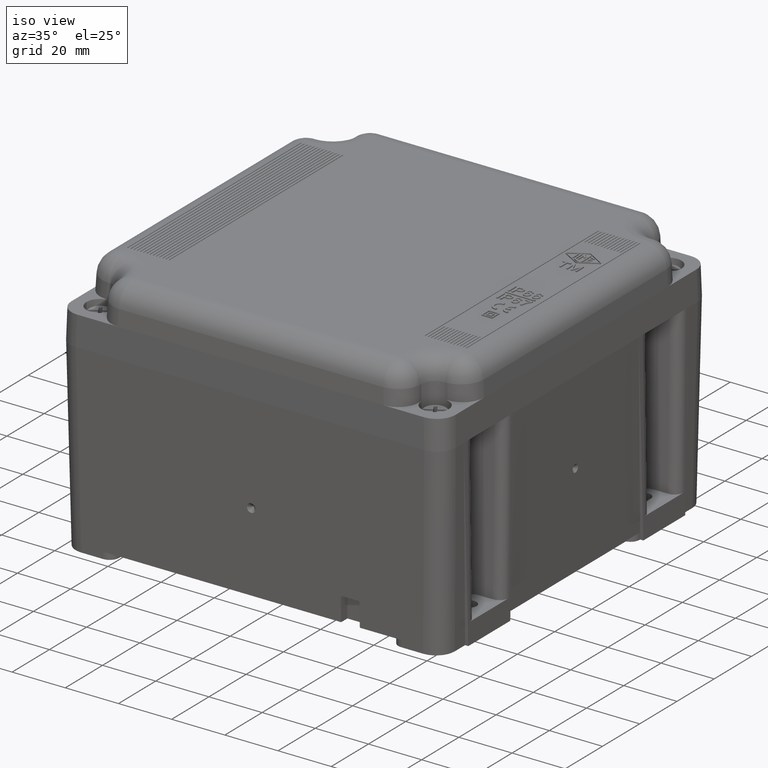
[diagram: clean part render]
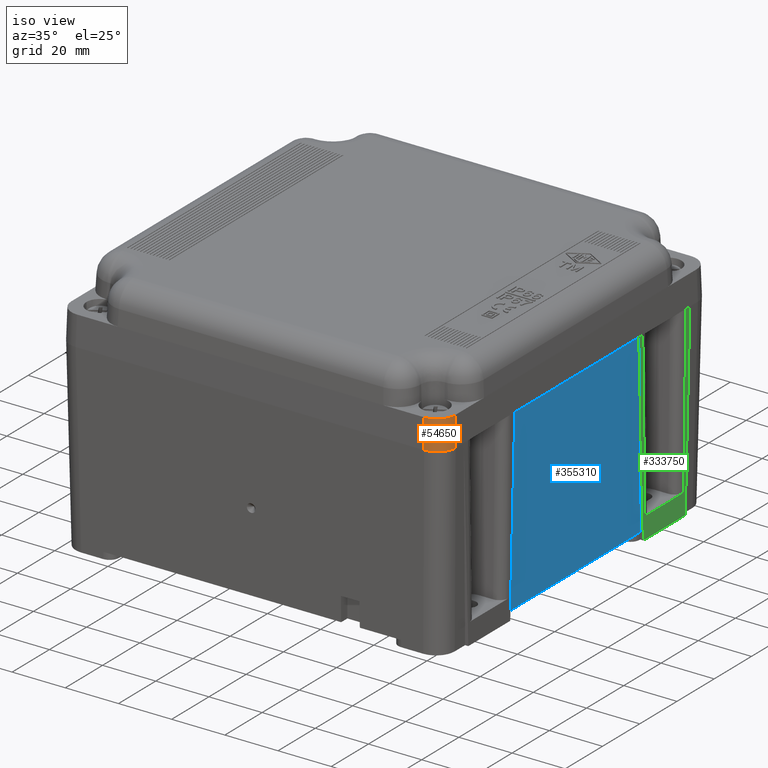
[diagram: same view with three faces highlighted in distinct colors, each labeled with its STEP entity id]
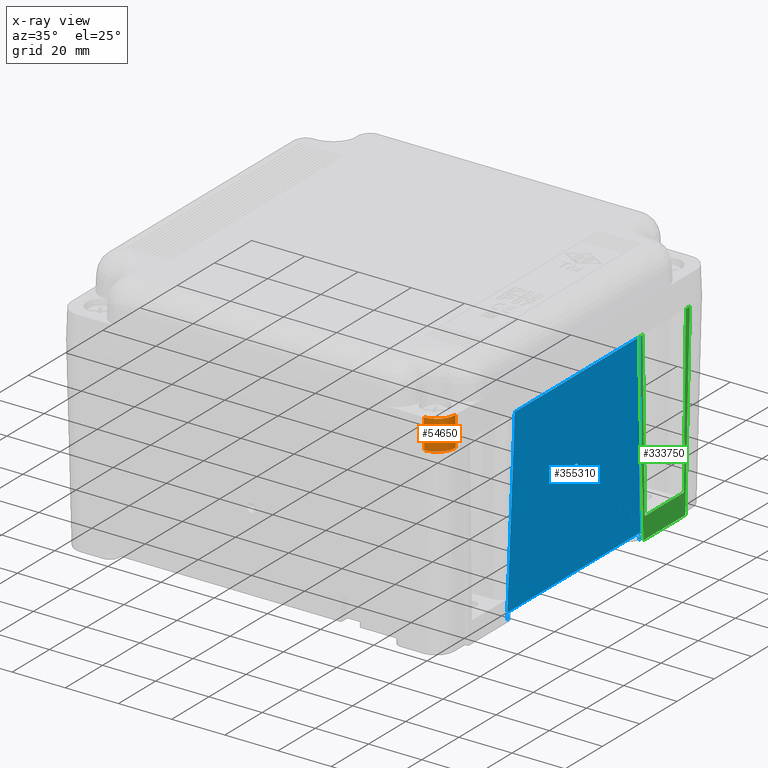
[diagram: x-ray of the same camera — body ghosted, the three highlighted faces saturated]
A machine part, iso view with three faces highlighted in distinct colors.
The next image is the same camera in x-ray (body ghosted, the three faces saturated) — at least one of them is partly hidden behind the body in this view.
Their STEP definitions:

[orange] entity #54650 — the highlighted cylindrical surface (edge-blend (fillet) strip) has radius 7 mm, axis along (-0.0262, 0.0262, 0.9993).
#54240=CARTESIAN_POINT('',(468.973882021168,58.526117978823,
3.42481598636368E-12));
#54250=DIRECTION('',(-0.0261679842651497,0.0261679842649793,
0.999315001988365));
#54260=DIRECTION('',(0.999657324975553,0.,0.0261769483080436));
#54270=AXIS2_PLACEMENT_3D('',#54240,#54250,#54260);
#54280=CYLINDRICAL_SURFACE('',#54270,7.);
#54290=CARTESIAN_POINT('',(469.209555315292,58.2904446847009,
-8.9999999999742));
#54300=DIRECTION('',(1.70549745039276E-13,-6.12323399573676E-17,-1.));
#54310=DIRECTION('',(-0.707106781186585,0.70710678118651,
-1.20640179049727E-13));
#54320=AXIS2_PLACEMENT_3D('',#54290,#54300,#54310);
#54330=ELLIPSE('',#54320,7.0047982728888,7.);
#54340=CARTESIAN_POINT('',(476.211954862728,58.2856464120937,
-8.99999999997301));
#54350=VERTEX_POINT('',#54340);
#54360=CARTESIAN_POINT('',(469.214353587899,51.2880451372648,
-8.9999999999742));
#54370=VERTEX_POINT('',#54360);
#54380=EDGE_CURVE('',#54350,#54370,#54330,.T.);
#54390=ORIENTED_EDGE('',*,*,#54380,.T.);
#54400=CARTESIAN_POINT('',(475.971483295997,58.526117978823,
0.18323863815973));
#54410=DIRECTION('',(-0.0261679842651497,0.0261679842649793,
0.999315001988365));
#54420=VECTOR('',#54410,1.);
#54430=LINE('',#54400,#54420);
#54440=CARTESIAN_POINT('',(476.499999999991,57.9976012748327,
-19.9999999999724));
#54450=VERTEX_POINT('',#54440);
#54460=EDGE_CURVE('',#54450,#54350,#54430,.T.);
#54470=ORIENTED_EDGE('',*,*,#54460,.T.);
#54480=CARTESIAN_POINT('',(469.497600452555,58.0023995474398,
-19.9999999999741));
#54490=DIRECTION('',(1.70530256582424E-13,0.,-1.));
#54500=DIRECTION('',(-0.707106781186584,0.707106781186511,
-1.2058310082692E-13));
#54510=AXIS2_PLACEMENT_3D('',#54480,#54490,#54500);
#54520=ELLIPSE('',#54510,7.0047982728888,7.);
#54530=CARTESIAN_POINT('',(469.502398725162,51.0000000000038,
-19.9999999999736));
#54540=VERTEX_POINT('',#54530);
#54550=EDGE_CURVE('',#54450,#54540,#54520,.T.);
#54560=ORIENTED_EDGE('',*,*,#54550,.F.);
#54570=CARTESIAN_POINT('',(468.973882021168,51.5285167039941,
0.183238638158537));
#54580=DIRECTION('',(-0.0261679842651497,0.0261679842649793,
0.999315001988365));
#54590=VECTOR('',#54580,1.);
#54600=LINE('',#54570,#54590);
#54610=EDGE_CURVE('',#54540,#54370,#54600,.T.);
#54620=ORIENTED_EDGE('',*,*,#54610,.F.);
#54630=EDGE_LOOP('',(#54620,#54560,#54470,#54390));
#54640=FACE_OUTER_BOUND('',#54630,.T.);
#54650=ADVANCED_FACE('',(#54640),#54280,.T.);

[blue] entity #355310 — the highlighted planar face has unit normal (0.9998, -0, -0.0175).
#333190=CARTESIAN_POINT('',(32.6999999999905,172.999999999993,
-49.6950877085779));
#333200=VERTEX_POINT('',#333190);
#342400=CARTESIAN_POINT('',(32.6999999999905,172.999999999985,
-116.304912291481));
#342410=VERTEX_POINT('',#342400);
#347670=CARTESIAN_POINT('',(0.700000000010186,172.44143792229,
-81.5215854885998));
#347680=VERTEX_POINT('',#347670);
#347750=CARTESIAN_POINT('',(0.700000000010271,172.44143792229,
-84.478414511461));
#347760=VERTEX_POINT('',#347750);
#347790=CARTESIAN_POINT('',(0.725813686193579,172.441888501858,
-83.0000000000304));
#347800=DIRECTION('',(-0.0174524064371354,0.999847695156394,
-5.9235661934192E-14));
#347810=DIRECTION('',(0.999847695156394,0.0174524064371354,
3.41007803703483E-12));
#347820=AXIS2_PLACEMENT_3D('',#347790,#347800,#347810);
#347830=ELLIPSE('',#347820,1.47909036362547,1.47863978405188);
#347840=CARTESIAN_POINT('',(2.20467877719254,172.467702188041,
-83.0000000000253));
#347850=VERTEX_POINT('',#347840);
#347860=EDGE_CURVE('',#347850,#347760,#347830,.T.);
#347880=EDGE_CURVE('',#347680,#347850,#347830,.T.);
#349330=CARTESIAN_POINT('',(-37.2999999999908,171.778145455025,
-47.5000000000609));
#349340=VERTEX_POINT('',#349330);
#349370=CARTESIAN_POINT('',(-37.2999999999939,171.778145455032,58.718203
));
#349380=DIRECTION('',(2.85724411918868E-14,-5.8745951370546E-14,-1.));
#349390=VECTOR('',#349380,1.);
#349400=LINE('',#349370,#349390);
#349410=CARTESIAN_POINT('',(-37.2999999999908,171.778145455025,
-47.2506338441284));
#349420=VERTEX_POINT('',#349410);
#349430=EDGE_CURVE('',#349420,#349340,#349400,.T.);
#354140=CARTESIAN_POINT('',(32.6999999999905,172.999999999996,58.718203)
);
#354150=DIRECTION('',(1.50731761482806E-16,-5.92420541540204E-14,-1.));
#354160=VECTOR('',#354150,1.);
#354170=LINE('',#354140,#354160);
#354180=EDGE_CURVE('',#333200,#342410,#354170,.T.);
#354720=CARTESIAN_POINT('',(-37.2893386609297,171.778331549373,
-344.500000000058));
#354730=DIRECTION('',(-0.0174524064371354,0.999847695156394,
-5.9235661934192E-14));
#354740=DIRECTION('',(-2.85767699558967E-14,5.87458758116892E-14,1.));
#354750=AXIS2_PLACEMENT_3D('',#354720,#354730,#354740);
#354760=PLANE('',#354750);
#354770=ORIENTED_EDGE('',*,*,#347860,.F.);
#354780=EDGE_CURVE('',#347760,#347680,#347830,.T.);
#354790=ORIENTED_EDGE('',*,*,#354780,.F.);
#354800=ORIENTED_EDGE('',*,*,#347880,.F.);
#354810=EDGE_LOOP('',(#354800,#354790,#354770));
#354820=FACE_BOUND('',#354810,.T.);
#354830=CARTESIAN_POINT('',(-9.86108342253003,172.25709352543,
-118.500000000016));
#354840=DIRECTION('',(0.999847695156391,0.0174524064372797,
2.75523494764867E-14));
#354850=VECTOR('',#354840,1.);
#354860=LINE('',#354830,#354850);
#354870=CARTESIAN_POINT('',(-37.299999999999,171.778145455011,
-118.500000000016));
#354880=VERTEX_POINT('',#354870);
#354890=CARTESIAN_POINT('',(-34.8000000000028,171.821783117331,
-118.500000000016));
#354900=VERTEX_POINT('',#354890);
#354910=EDGE_CURVE('',#354880,#354900,#354860,.T.);
#354920=ORIENTED_EDGE('',*,*,#354910,.T.);
#354930=CARTESIAN_POINT('',(-37.3000000000041,171.778145455031,58.718203
));
#354940=DIRECTION('',(2.85724411918869E-14,-5.8745951370546E-14,-1.));
#354950=VECTOR('',#354940,1.);
#354960=LINE('',#354930,#354950);
#354970=CARTESIAN_POINT('',(-37.2999999999993,171.778145455021,
-118.749366155935));
#354980=VERTEX_POINT('',#354970);
#354990=EDGE_CURVE('',#354880,#354980,#354960,.T.);
#355000=ORIENTED_EDGE('',*,*,#354990,.F.);
#355010=CARTESIAN_POINT('',(-9.80000000000002,172.258159740543,
-117.789044994899));
#355020=DIRECTION('',(0.999238800303638,0.0174417781379482,
0.0348941878130671));
#355030=VECTOR('',#355020,1.);
#355040=LINE('',#355010,#355030);
#355050=EDGE_CURVE('',#354980,#342410,#355040,.T.);
#355060=ORIENTED_EDGE('',*,*,#355050,.F.);
#355070=ORIENTED_EDGE('',*,*,#354180,.T.);
#355080=CARTESIAN_POINT('',(-9.80000000000002,172.258159740547,
-48.2109550051621));
#355090=DIRECTION('',(-0.99923880030364,-0.0174417781379441,
0.03489418781301));
#355100=VECTOR('',#355090,1.);
#355110=LINE('',#355080,#355100);
#355120=EDGE_CURVE('',#333200,#349420,#355110,.T.);
#355130=ORIENTED_EDGE('',*,*,#355120,.F.);
#355140=ORIENTED_EDGE('',*,*,#349430,.F.);
#355150=CARTESIAN_POINT('',(-9.86108342252121,172.257093525441,
-47.5000000000602));
#355160=DIRECTION('',(-0.999847695156394,-0.0174524064371354,
-2.75532734332307E-14));
#355170=VECTOR('',#355160,1.);
#355180=LINE('',#355150,#355170);
#355190=CARTESIAN_POINT('',(-34.8000000000048,171.821783117345,
-47.5000000000609));
#355200=VERTEX_POINT('',#355190);
#355210=EDGE_CURVE('',#355200,#349340,#355180,.T.);
#355220=ORIENTED_EDGE('',*,*,#355210,.T.);
#355230=CARTESIAN_POINT('',(-34.8000000000079,171.821783117352,58.718203
));
#355240=DIRECTION('',(-2.85724411918869E-14,5.8745951370546E-14,1.));
#355250=VECTOR('',#355240,1.);
#355260=LINE('',#355230,#355250);
#355270=EDGE_CURVE('',#354900,#355200,#355260,.T.);
#355280=ORIENTED_EDGE('',*,*,#355270,.T.);
#355290=EDGE_LOOP('',(#355280,#355220,#355140,#355130,#355070,#355060,
#355000,#354920));
#355300=FACE_OUTER_BOUND('',#355290,.T.);
#355310=ADVANCED_FACE('',(#354820,#355300),#354760,.T.);

[green] entity #333750 — the highlighted planar face has unit normal (-1, -0, -0).
#333080=CARTESIAN_POINT('',(32.6999999999957,172.999999999993,
-27.9177859745089));
#333090=DIRECTION('',(-7.70954603581925E-14,-1.,1.40642972625859E-15));
#333100=DIRECTION('',(5.6994150622305E-14,-1.40642972626298E-15,-1.));
#333110=AXIS2_PLACEMENT_3D('',#333080,#333090,#333100);
#333120=PLANE('',#333110);
#333130=CARTESIAN_POINT('',(-9.80000000000002,172.999999999997,
-48.2109550051621));
#333140=DIRECTION('',(0.999390827019082,-7.7095404284344E-14,
-0.0348994967028967));
#333150=VECTOR('',#333140,1.);
#333160=LINE('',#333130,#333150);
#333170=CARTESIAN_POINT('',(-37.2999999999907,172.999999999999,
-47.2506338441284));
#333180=VERTEX_POINT('',#333170);
#333190=CARTESIAN_POINT('',(32.6999999999905,172.999999999993,
-49.6950877085779));
#333200=VERTEX_POINT('',#333190);
#333210=EDGE_CURVE('',#333180,#333200,#333160,.T.);
#333220=ORIENTED_EDGE('',*,*,#333210,.F.);
#333230=CARTESIAN_POINT('',(32.6999999999905,172.999999999993,58.718203)
);
#333240=DIRECTION('',(-1.50731761487137E-16,1.4064297262586E-15,1.));
#333250=VECTOR('',#333240,1.);
#333260=LINE('',#333230,#333250);
#333270=CARTESIAN_POINT('',(32.6999999999968,172.999999999993,
-47.5827471737614));
#333280=VERTEX_POINT('',#333270);
#333290=EDGE_CURVE('',#333200,#333280,#333260,.T.);
#333300=ORIENTED_EDGE('',*,*,#333290,.F.);
#333310=CARTESIAN_POINT('',(-9.79999999999089,172.999999999997,
-46.8409069143148));
#333320=DIRECTION('',(0.999847695156392,-7.71082639293678E-14,
-0.0174524064372258));
#333330=VECTOR('',#333320,1.);
#333340=LINE('',#333310,#333330);
#333350=CARTESIAN_POINT('',(-29.2999999999976,172.999999999998,
-46.5005331482156));
#333360=VERTEX_POINT('',#333350);
#333370=EDGE_CURVE('',#333360,#333280,#333340,.T.);
#333380=ORIENTED_EDGE('',*,*,#333370,.T.);
#333390=CARTESIAN_POINT('',(-29.3000000000036,172.999999999998,58.718203
));
#333400=DIRECTION('',(-5.6994150622305E-14,1.40642972626298E-15,1.));
#333410=VECTOR('',#333400,1.);
#333420=LINE('',#333390,#333410);
#333430=CARTESIAN_POINT('',(-29.2999999999988,172.999999999998,
-25.4994668519081));
#333440=VERTEX_POINT('',#333430);
#333450=EDGE_CURVE('',#333360,#333440,#333420,.T.);
#333460=ORIENTED_EDGE('',*,*,#333450,.F.);
#333470=CARTESIAN_POINT('',(-9.79999999999213,172.999999999997,
-25.1590930858067));
#333480=DIRECTION('',(-0.99984769515639,7.70591727629514E-14,
-0.0174524064373407));
#333490=VECTOR('',#333480,1.);
#333500=LINE('',#333470,#333490);
#333510=CARTESIAN_POINT('',(32.6999999999955,172.999999999993,
-24.4172528263552));
#333520=VERTEX_POINT('',#333510);
#333530=EDGE_CURVE('',#333520,#333440,#333500,.T.);
#333540=ORIENTED_EDGE('',*,*,#333530,.T.);
#333550=CARTESIAN_POINT('',(32.6999999999905,172.999999999993,
-22.3049122915703));
#333560=VERTEX_POINT('',#333550);
#333570=EDGE_CURVE('',#333520,#333560,#333260,.T.);
#333580=ORIENTED_EDGE('',*,*,#333570,.F.);
#333590=CARTESIAN_POINT('',(-9.80000000000001,172.999999999997,
-23.7890449949717));
#333600=DIRECTION('',(-0.999390827019094,7.70006732937003E-14,
-0.0348994967025579));
#333610=VECTOR('',#333600,1.);
#333620=LINE('',#333590,#333610);
#333630=CARTESIAN_POINT('',(-37.2999999999913,172.999999999999,
-24.749366155996));
#333640=VERTEX_POINT('',#333630);
#333650=EDGE_CURVE('',#333560,#333640,#333620,.T.);
#333660=ORIENTED_EDGE('',*,*,#333650,.F.);
#333670=CARTESIAN_POINT('',(-37.2999999999937,172.999999999999,58.718203
));
#333680=DIRECTION('',(2.85724411918953E-14,-1.40642972626079E-15,-1.));
#333690=VECTOR('',#333680,1.);
#333700=LINE('',#333670,#333690);
#333710=EDGE_CURVE('',#333640,#333180,#333700,.T.);
#333720=ORIENTED_EDGE('',*,*,#333710,.F.);
#333730=EDGE_LOOP('',(#333720,#333660,#333580,#333540,#333460,#333380,
#333300,#333220));
#333740=FACE_OUTER_BOUND('',#333730,.T.);
#333750=ADVANCED_FACE('',(#333740),#333120,.F.);